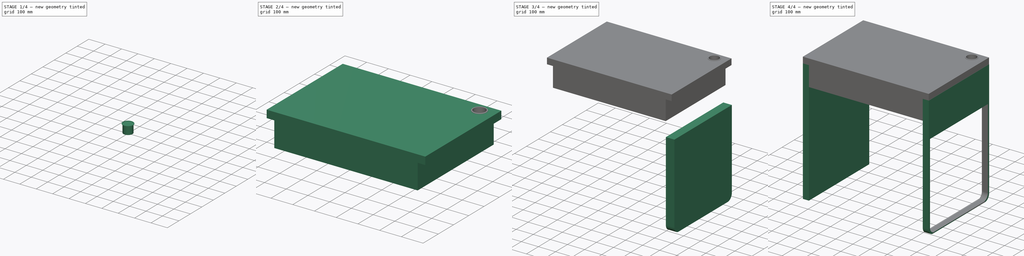
[diagram: build sequence overview — one tinted view per stage of 4, left to right]
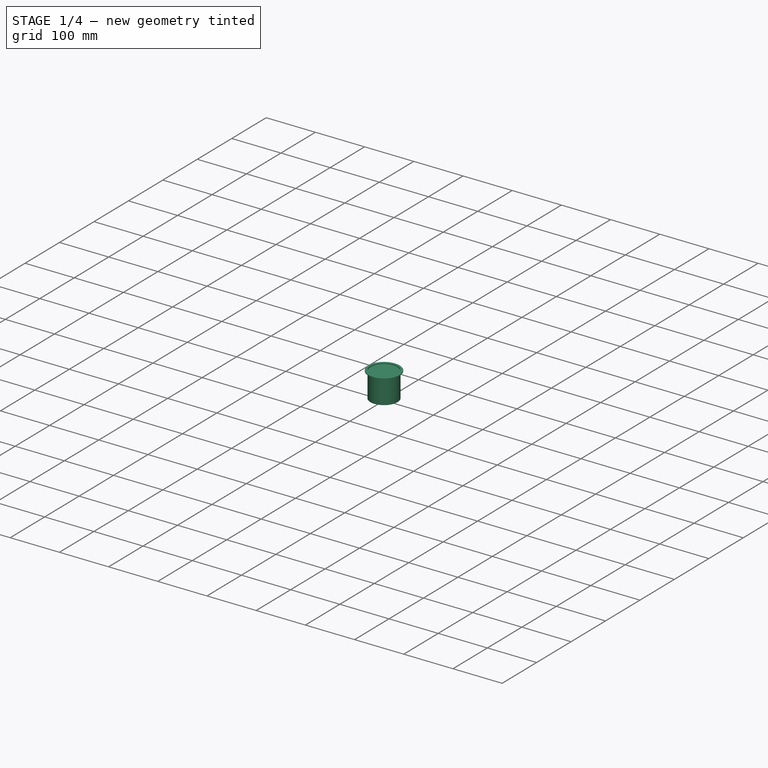
[diagram: stage 1 of 4 — iso view after this stage's code; geometry added in this stage tinted green]
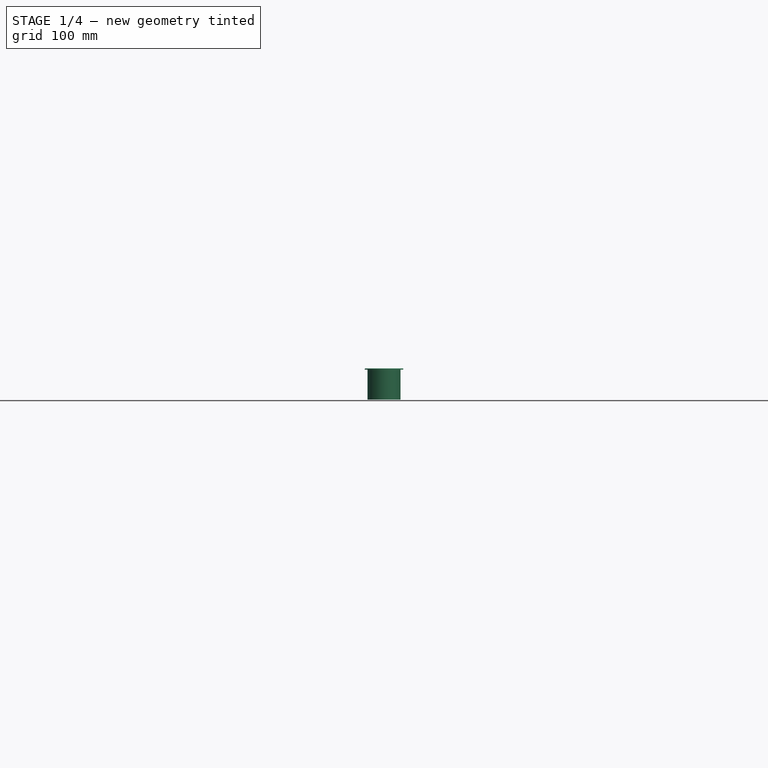
[diagram: stage 1 of 4 — front view after this stage's code; geometry added in this stage tinted green]
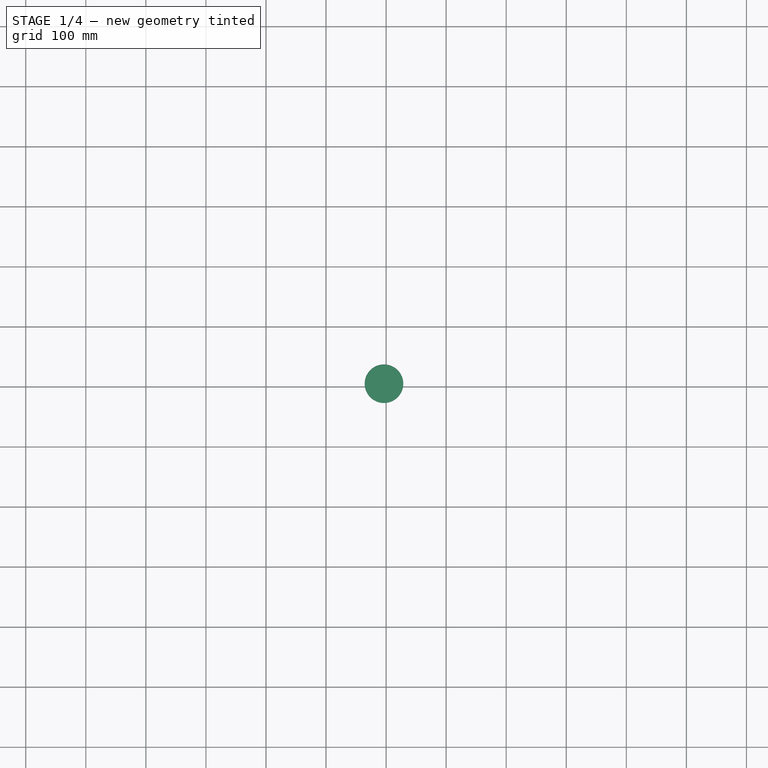
[diagram: stage 1 of 4 — top view after this stage's code; geometry added in this stage tinted green]
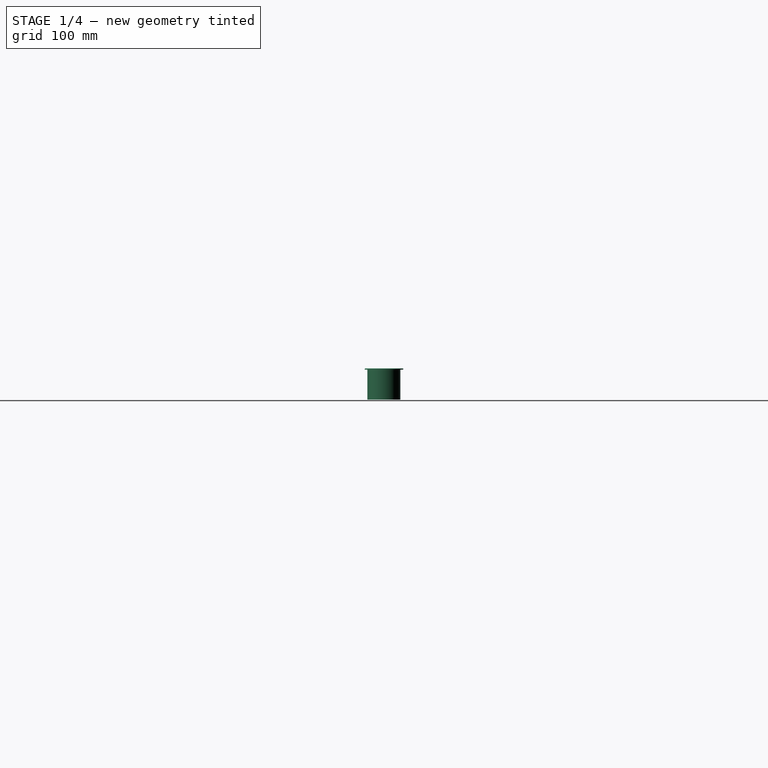
[diagram: stage 1 of 4 — right view after this stage's code; geometry added in this stage tinted green]
FCSTD DOCUMENT  (FreeCAD 1.0R38806 (Git))
Label: mike
License: All rights reserved
LicenseURL: https://en.wikipedia.org/wiki/All_rights_reserved
objects: Sketcher::SketchObject×6, Part::Extrusion×6, Part::Fillet×3, Part::Cut×2
note: 23 computed .brp shape members not serialized (recipe doc carries the construction recipe); baked Part::Feature solids carry a one-line shape summary decoded from their .brp

FEATURE [Sketcher::SketchObject] Sketch004  label="bujero"
  ArcFitTolerance = 1e-06
  AttachmentSupport = -> [Extrude]
  FullyConstrained = false
  MakeInternals = false
  MapMode = 5
  Placement = pos=(0,0,35) rot=(0,0,1;0rad)
  sketch-geometry (1):
    g0: Circle CenterX=296.595 CenterY=204.344 CenterZ=0 NormalX=0 NormalY=0 NormalZ=1 AngleXU=0 Radius=27.4557
FEATURE [Part::Extrusion] Extrude004
  Base = -> Sketch004
  Dir = (0,0,1)
  DirMode = 2
  FaceMakerClass = Part::FaceMakerBullseye
  FaceMakerMode = 3
  LengthFwd = 0
  LengthRev = 50
  Solid = true
  Symmetric = false
FEATURE [Sketcher::SketchObject] Sketch005
  ArcFitTolerance = 1e-06
  AttachmentSupport = -> [Cut001]
  FullyConstrained = false
  MakeInternals = false
  MapMode = 5
  Placement = pos=(0,0,35) rot=(0,0,1;0rad)
  sketch-geometry (2):
    g0: Circle CenterX=296.517 CenterY=204.548 CenterZ=0 NormalX=0 NormalY=0 NormalZ=1 AngleXU=0 Radius=27.1377
    g1: Circle CenterX=296.517 CenterY=204.548 CenterZ=0 NormalX=0 NormalY=0 NormalZ=1 AngleXU=0 Radius=32.1188
  constraints (1):
    c: Coincident(g1,g0)
FEATURE [Part::Extrusion] Extrude005
  Base = -> Sketch005
  Dir = (0,0,1)
  DirMode = 2
  FaceMakerClass = Part::FaceMakerBullseye
  FaceMakerMode = 3
  LengthFwd = 2
  LengthRev = 0
  Solid = true
  Symmetric = false
FEATURE [Part::Fillet] Fillet002
  Base = -> Extrude005
  EdgeLinks = -> Extrude005 [Edge3]
  Edges = 1 edges r=1: [Edge3]
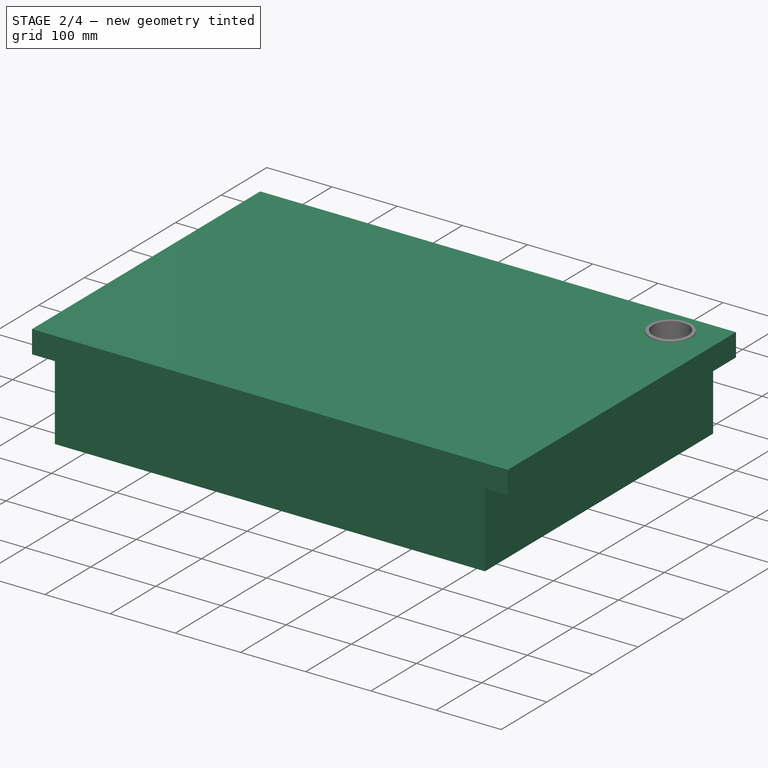
[diagram: stage 2 of 4 — iso view after this stage's code; geometry added in this stage tinted green]
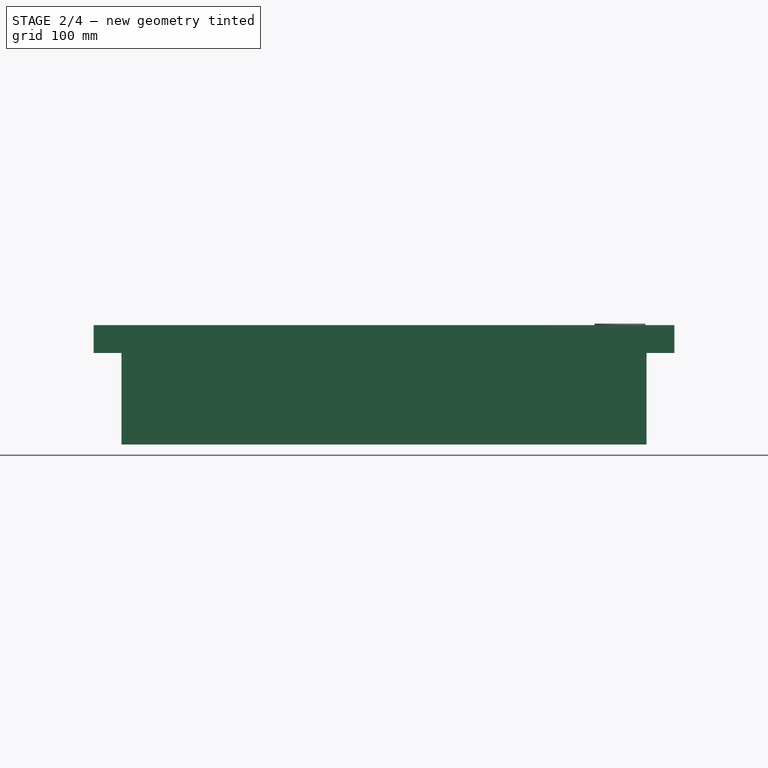
[diagram: stage 2 of 4 — front view after this stage's code; geometry added in this stage tinted green]
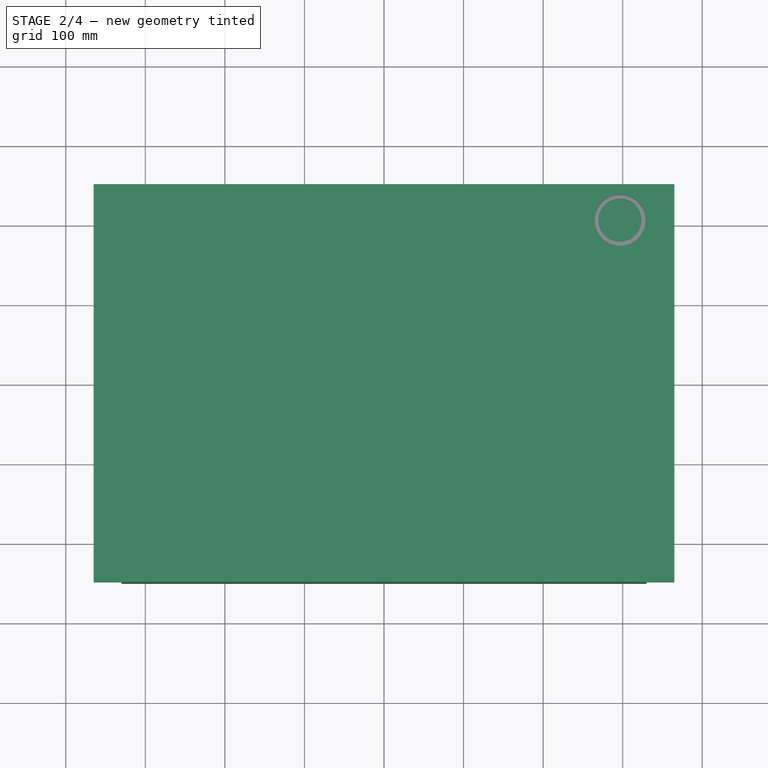
[diagram: stage 2 of 4 — top view after this stage's code; geometry added in this stage tinted green]
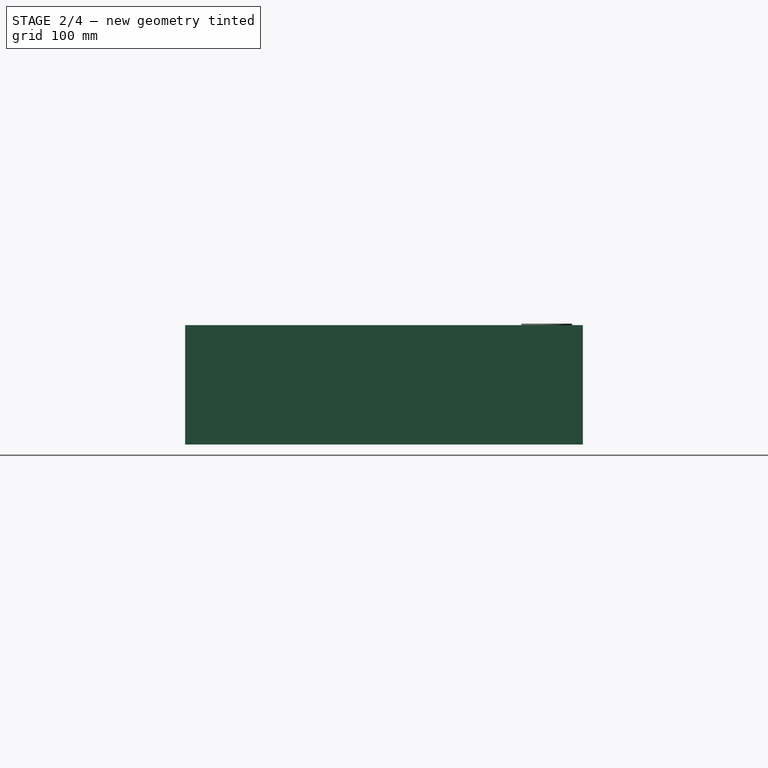
[diagram: stage 2 of 4 — right view after this stage's code; geometry added in this stage tinted green]
FEATURE [Sketcher::SketchObject] Sketch  label="base_de_la_mesa"
  ArcFitTolerance = 1e-06
  FullyConstrained = true
  MakeInternals = false
  sketch-geometry (5):
    g0: LineSegment StartX=-365 StartY=-250 StartZ=0 EndX=365 EndY=-250 EndZ=0
    g1: LineSegment StartX=365 StartY=-250 StartZ=0 EndX=365 EndY=250 EndZ=0
    g2: LineSegment StartX=365 StartY=250 StartZ=0 EndX=-365 EndY=250 EndZ=0
    g3: LineSegment StartX=-365 StartY=250 StartZ=0 EndX=-365 EndY=-250 EndZ=0
    g4: GeomPoint [constr] X=0 Y=0 Z=0
  constraints (12):
    c: Coincident(g0,g1)
    c: Coincident(g1,g2)
    c: Coincident(g2,g3)
    c: Coincident(g3,g0)
    c: Horizontal(g0)
    c: Horizontal(g2)
    c: Vertical(g1)
    c: Vertical(g3)
    c: Symmetric(g2,g0,g4)
    c: Distance(g1,g3) = 730
    c: Distance(g0,g2) = 500
    c: Coincident(g4,g-1)
FEATURE [Part::Extrusion] Extrude
  Base = -> Sketch
  Dir = (0,0,1)
  DirMode = 0
  FaceMakerClass = Part::FaceMakerBullseye
  FaceMakerMode = 3
  LengthFwd = 35
  LengthRev = 0
  Solid = true
  Symmetric = false
FEATURE [Sketcher::SketchObject] Sketch003  label="cajonera"
  ArcFitTolerance = 1e-06
  AttachmentSupport = -> [Extrude]
  FullyConstrained = true
  MakeInternals = false
  MapMode = 2
  sketch-geometry (4):
    g0: LineSegment StartX=330 StartY=-250 StartZ=0 EndX=330 EndY=250 EndZ=0
    g1: LineSegment StartX=330 StartY=250 StartZ=0 EndX=-330 EndY=250 EndZ=0
    g2: LineSegment StartX=-330 StartY=250 StartZ=0 EndX=-330 EndY=-250 EndZ=0
    g3: LineSegment StartX=-330 StartY=-250 StartZ=0 EndX=330 EndY=-250 EndZ=0
  constraints (12):
    c: Coincident(g0,g1)
    c: Coincident(g1,g2)
    c: Coincident(g2,g3)
    c: Coincident(g3,g0)
    c: Vertical(g0)
    c: Vertical(g2)
    c: Horizontal(g1)
    c: Horizontal(g3)
    c: Distance(g0,g2) = 660
    c: Distance(g1,g3) = 500
    c: Distance(g-1,g3) = 250
    c: Distance(g-2,g0) = 330
FEATURE [Part::Extrusion] Extrude003
  Base = -> Sketch003
  Dir = (0,0,1)
  DirMode = 2
  FaceMakerClass = Part::FaceMakerBullseye
  FaceMakerMode = 3
  LengthFwd = 0
  LengthRev = 115
  Solid = true
  Symmetric = false
FEATURE [Part::Cut] Cut001
  Base = -> Extrude
  Refine = true
  Tool = -> Extrude004
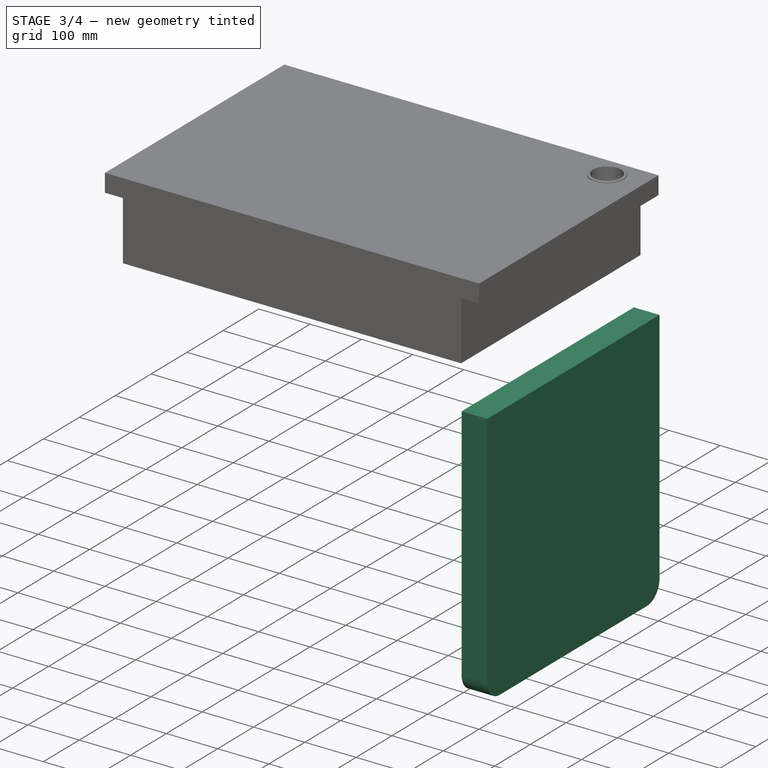
[diagram: stage 3 of 4 — iso view after this stage's code; geometry added in this stage tinted green]
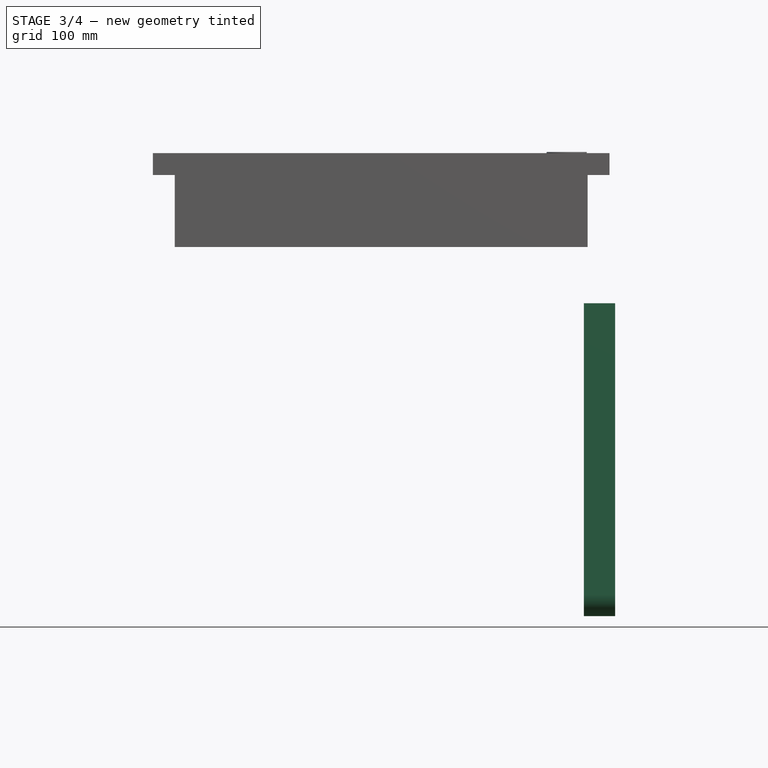
[diagram: stage 3 of 4 — front view after this stage's code; geometry added in this stage tinted green]
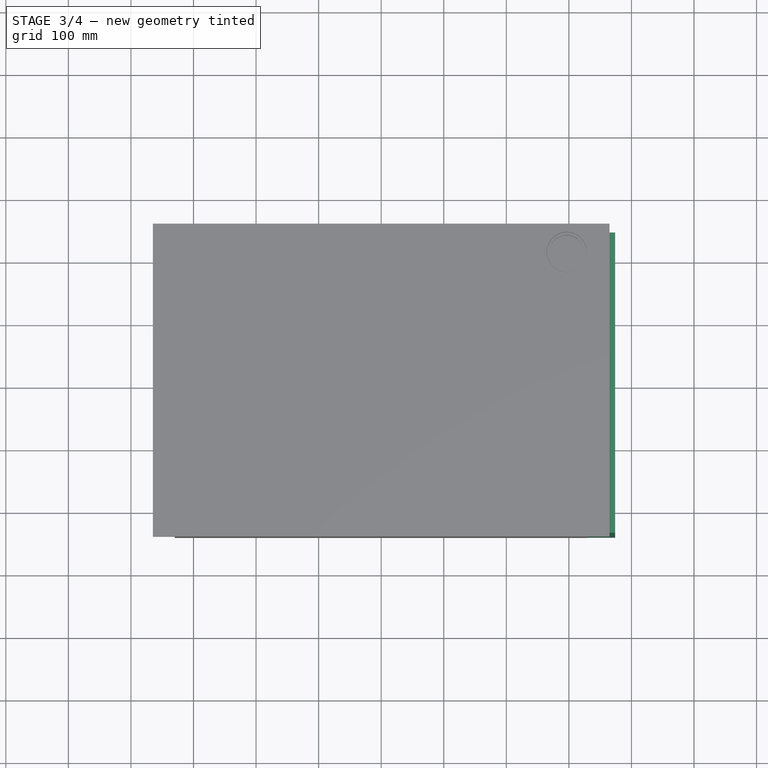
[diagram: stage 3 of 4 — top view after this stage's code; geometry added in this stage tinted green]
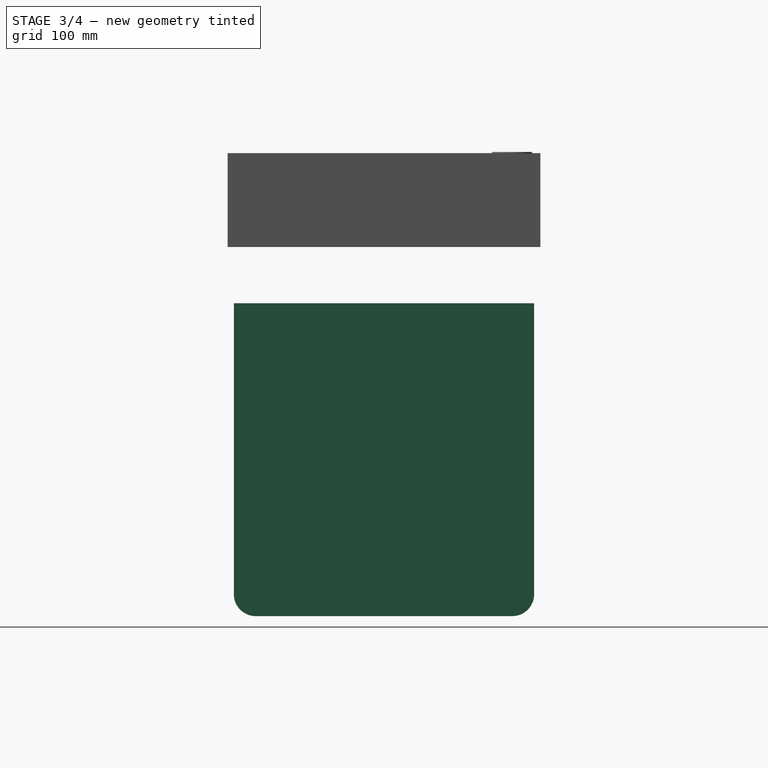
[diagram: stage 3 of 4 — right view after this stage's code; geometry added in this stage tinted green]
FEATURE [Sketcher::SketchObject] Sketch002  label="hueco_mesa"
  ArcFitTolerance = 1e-06
  AttachmentOffset = pos=(0,0,608) rot=(0,0,1;0rad)
  AttachmentSupport = -> [Fillet]
  FullyConstrained = true
  MakeInternals = false
  MapMode = 4
  Placement = pos=(608,0,0) rot=(0.57735,0.57735,0.57735;2.0944rad)
  sketch-geometry (4):
    g0: LineSegment StartX=-240 StartY=-205 StartZ=0 EndX=-240 EndY=-705 EndZ=0
    g1: LineSegment StartX=-240 StartY=-705 StartZ=0 EndX=240 EndY=-705 EndZ=0
    g2: LineSegment StartX=240 StartY=-705 StartZ=0 EndX=240 EndY=-205 EndZ=0
    g3: LineSegment StartX=240 StartY=-205 StartZ=0 EndX=-240 EndY=-205 EndZ=0
  constraints (12):
    c: Coincident(g0,g1)
    c: Coincident(g1,g2)
    c: Coincident(g2,g3)
    c: Coincident(g3,g0)
    c: Vertical(g0)
    c: Vertical(g2)
    c: Horizontal(g1)
    c: Horizontal(g3)
    c: Distance(g-1,g3) = 205
    c: Distance(g-2,g0) = 240
    c: Distance(g-2,g2) = 240
    c: Distance(g1,g-1) = 705
FEATURE [Part::Extrusion] Extrude002
  Base = -> Sketch002
  Dir = (1,0,0)
  DirMode = 2
  FaceMakerClass = Part::FaceMakerBullseye
  FaceMakerMode = 3
  LengthFwd = 0
  LengthRev = 50
  Placement = pos=(-234,0,0) rot=(0,0,1;0rad)
  Solid = true
  Symmetric = false
FEATURE [Part::Fillet] Fillet001
  Base = -> Extrude002
  EdgeLinks = -> Extrude002 [Edge2,Edge5]
  Edges = 2 edges r=35: [Edge2,Edge5]
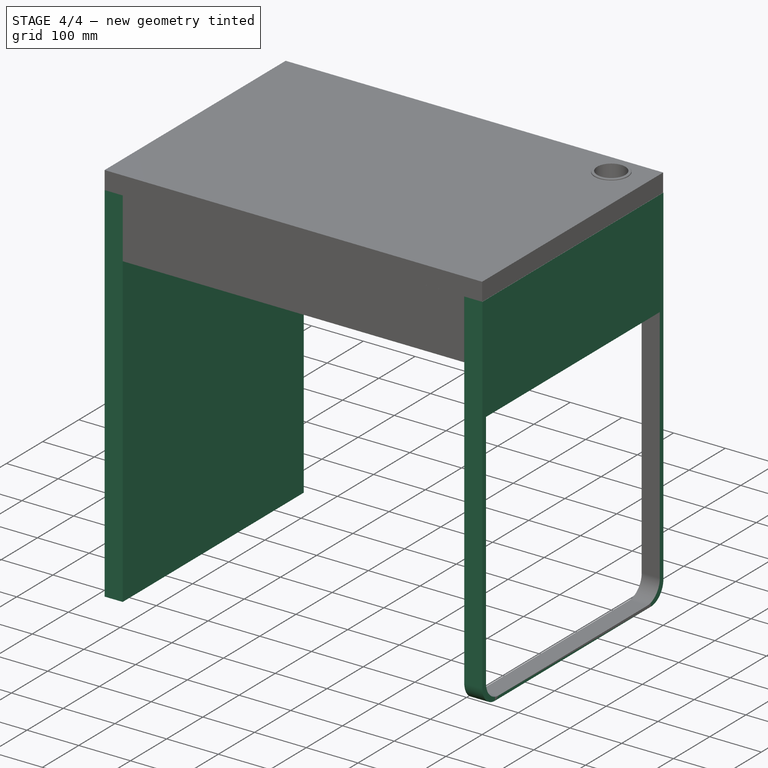
[diagram: stage 4 of 4 — iso view after this stage's code; geometry added in this stage tinted green]
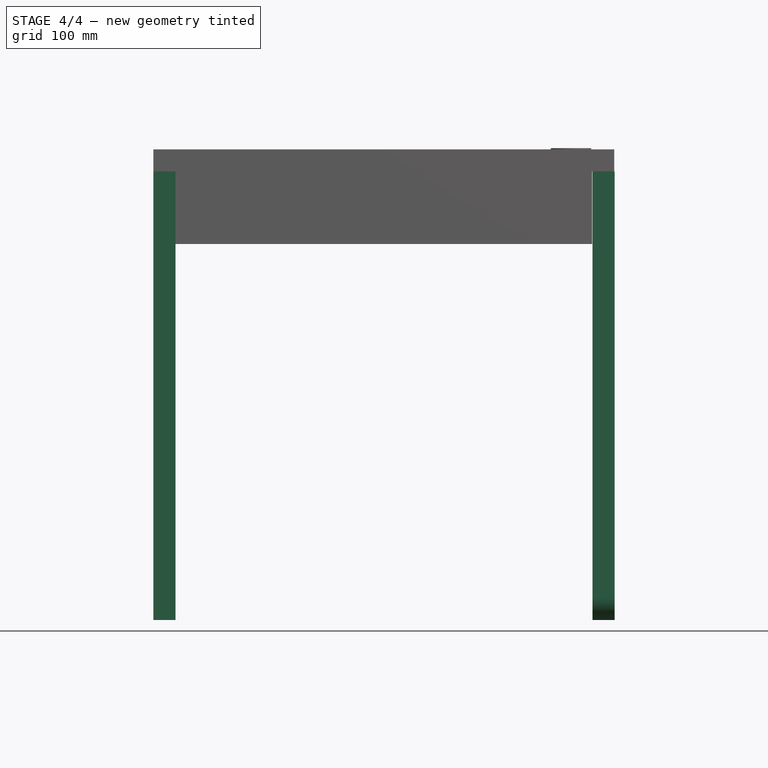
[diagram: stage 4 of 4 — front view after this stage's code; geometry added in this stage tinted green]
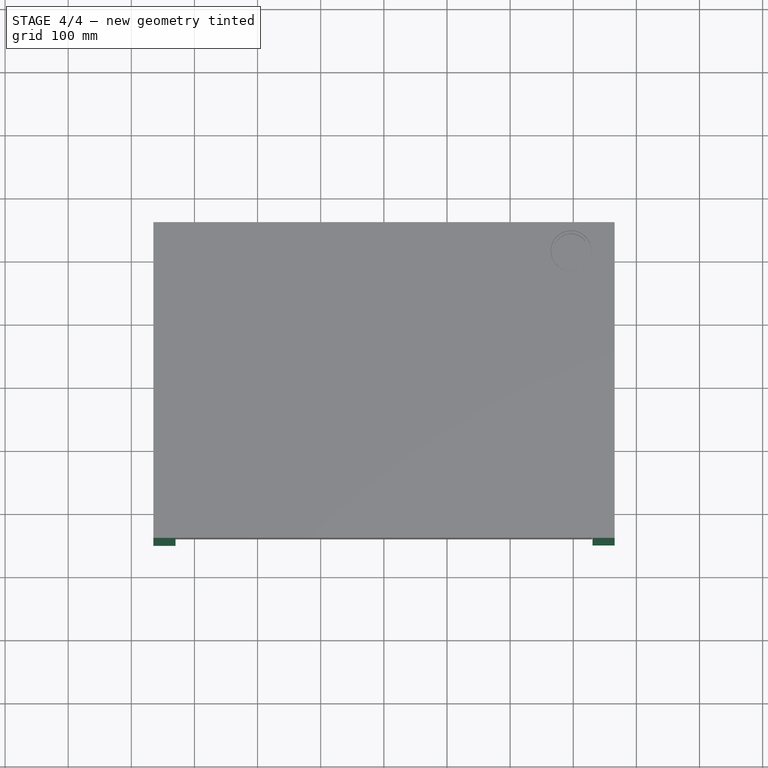
[diagram: stage 4 of 4 — top view after this stage's code; geometry added in this stage tinted green]
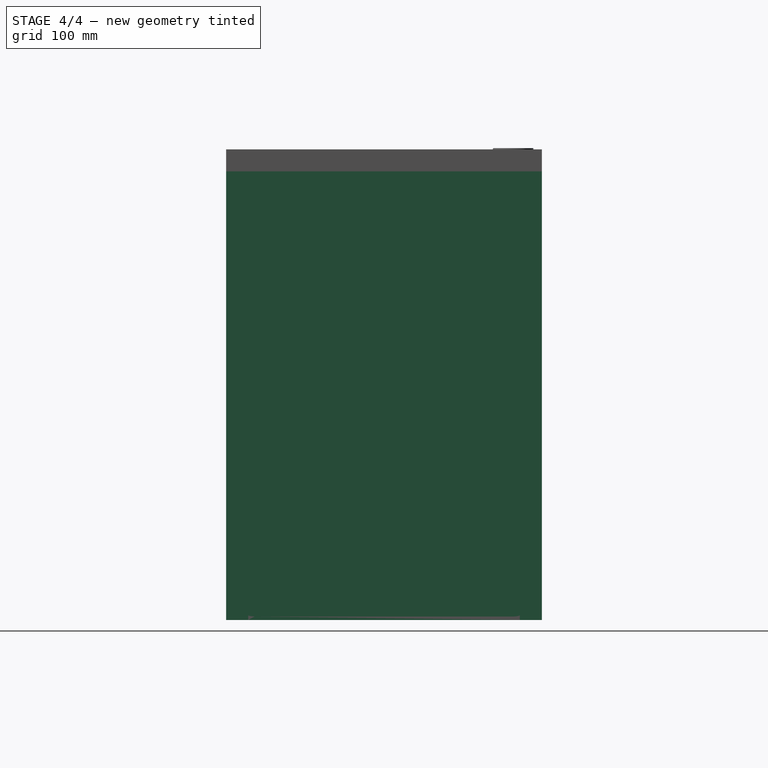
[diagram: stage 4 of 4 — right view after this stage's code; geometry added in this stage tinted green]
FEATURE [Sketcher::SketchObject] Sketch001  label="patas"
  ArcFitTolerance = 1e-06
  AttachmentSupport = -> [Sketch]
  FullyConstrained = true
  MakeInternals = false
  MapMode = 2
  sketch-geometry (8):
    g0: LineSegment StartX=-365 StartY=-250 StartZ=0 EndX=-330 EndY=-250 EndZ=0
    g1: LineSegment StartX=-330 StartY=-250 StartZ=0 EndX=-330 EndY=250 EndZ=0
    g2: LineSegment StartX=-330 StartY=250 StartZ=0 EndX=-365 EndY=250 EndZ=0
    g3: LineSegment StartX=-365 StartY=250 StartZ=0 EndX=-365 EndY=-250 EndZ=0
    g4: LineSegment StartX=365.5 StartY=-250 StartZ=0 EndX=365.5 EndY=250 EndZ=0
    g5: LineSegment StartX=365.5 StartY=250 StartZ=0 EndX=330.5 EndY=250 EndZ=0
    g6: LineSegment StartX=330.5 StartY=250 StartZ=0 EndX=330.5 EndY=-250 EndZ=0
    g7: LineSegment StartX=330.5 StartY=-250 StartZ=0 EndX=365.5 EndY=-250 EndZ=0
  constraints (24):
    c: Coincident(g0,g1)
    c: Coincident(g1,g2)
    c: Coincident(g2,g3)
    c: Coincident(g3,g0)
    c: Horizontal(g0)
    c: Horizontal(g2)
    c: Vertical(g1)
    c: Vertical(g3)
    c: Distance(g1,g3) = 35
    c: Distance(g0,g2) = 500
    c: Distance(g-2,g3) = 365
    c: Distance(g-1,g0) = 250
    c: Coincident(g4,g5)
    c: Coincident(g5,g6)
    c: Coincident(g6,g7)
    c: Coincident(g7,g4)
    c: Vertical(g4)
    c: Vertical(g6)
    c: Horizontal(g5)
    c: Horizontal(g7)
    c: Distance(g4,g6) = 35
    c: Distance(g5,g7) = 500
    c: Distance(g-2,g4) = 365.5
    c: Distance(g-1,g7) = 250
FEATURE [Part::Extrusion] Extrude001
  Base = -> Sketch001
  Dir = (0,0,1)
  DirMode = 2
  FaceMakerClass = Part::FaceMakerBullseye
  FaceMakerMode = 3
  LengthFwd = 0
  LengthRev = 710.5
  Solid = true
  Symmetric = false
FEATURE [Part::Fillet] Fillet
  Base = -> Extrude001
  EdgeLinks = -> Extrude001 [Edge6,Edge11]
  Edges = 2 edges r=35: [Edge6,Edge11]
FEATURE [Part::Cut] Cut
  Base = -> Fillet
  Refine = true
  Tool = -> Fillet001
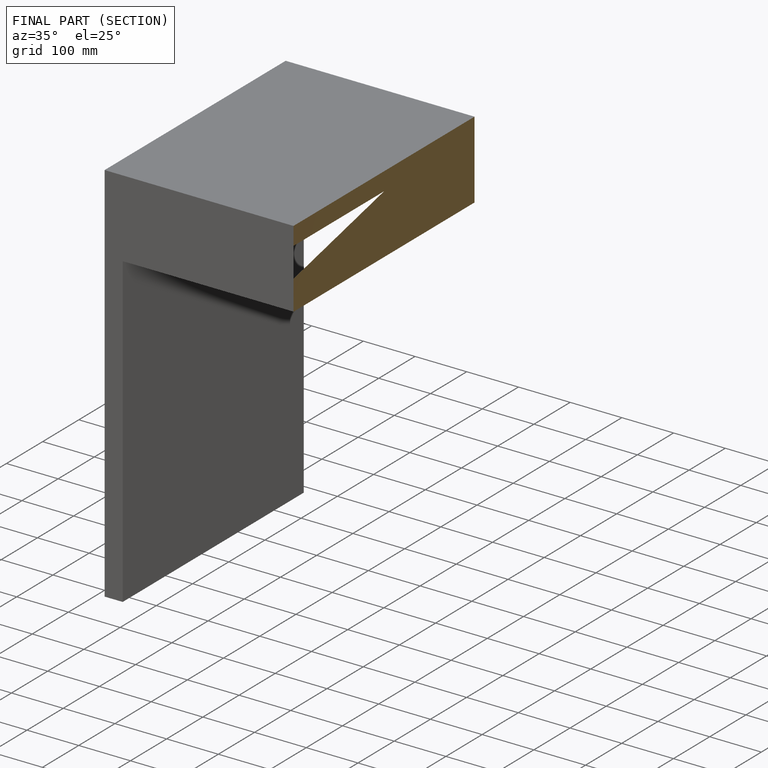
[diagram: finished part — half-section view (interior)]
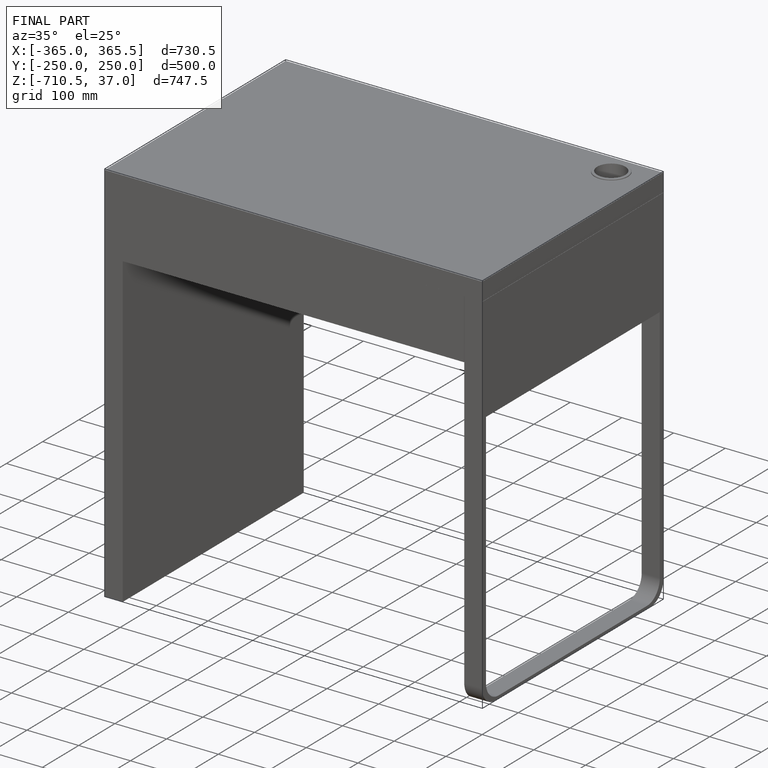
[diagram: finished part — iso view with bounding-box wireframe]
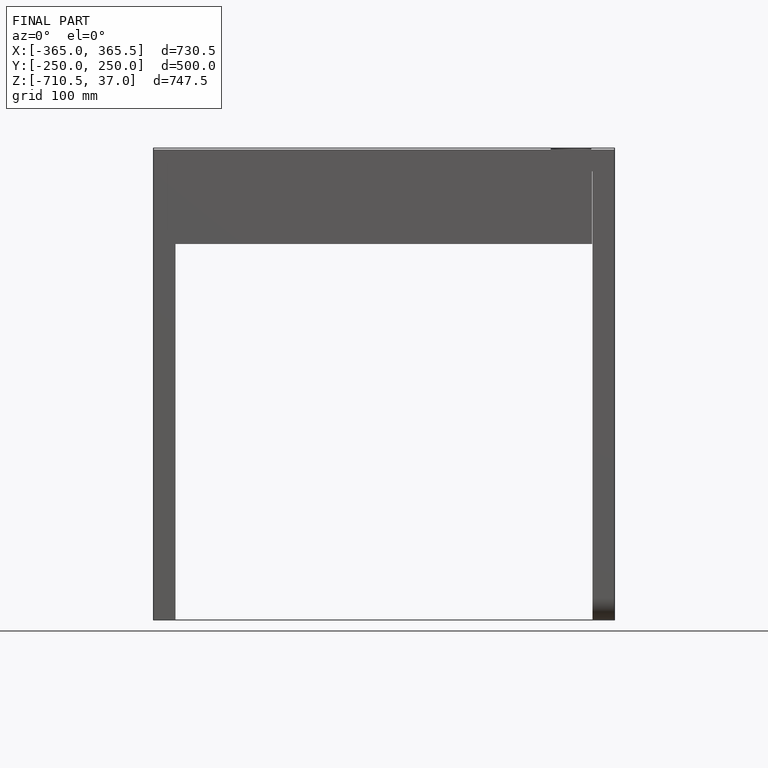
[diagram: finished part — front view with bounding-box wireframe]
